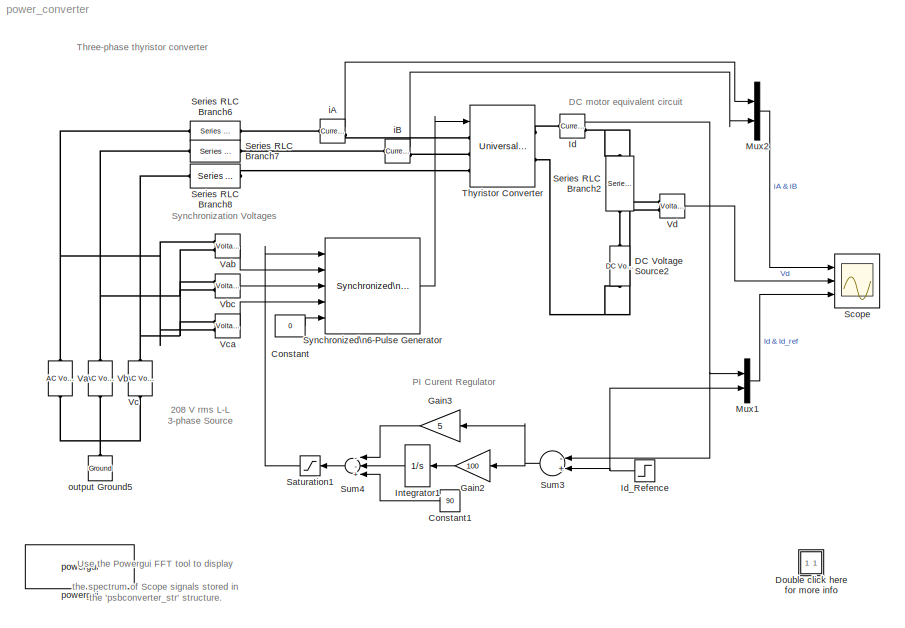
MODEL power_converter
KIND model
BLOCK [Constant] Constant
  Value = 0
BLOCK [Constant] Constant1
  Value = 90
BLOCK [Reference] DC Voltage Source2  REF=powerlib/Electrical\nSources/DC Voltage Source
  Amplitude = 120
  AttributesFormatString = \\n
  Description = source block
  Measurements = None
  Ports = [0, 0, 0, 0, 0, 1, 1]
  ShowPortLabels = on
  SourceBlock = powerlib/Electrical\nSources/DC Voltage Source
  SourceType = DC Voltage Source
BLOCK [SubSystem] Double click here for more info
  MaskDisplay = disp('?')
  MaskIconFrame = on
  MaskIconOpaque = on
  MaskIconRotate = none
  MaskIconUnits = autoscale
  MinAlgLoopOccurrences = off
  Ports = []
  RTWSystemCode = Auto
  TreatAsAtomicUnit = off
BLOCK [Gain] Gain2
  Gain = 100
BLOCK [Gain] Gain3
  Gain = 5
BLOCK [Reference] Id  REF=powerlib/Measurements/Current Measurement
  AttributesFormatString = \\n
  OutputType = Complex
  PSBequivalent = 0
  PhasorSimulation = off
  Ports = [0, 1, 0, 0, 0, 1, 1]
  ShowPortLabels = on
  SourceBlock = powerlib/Measurements/Current Measurement
  SourceType = Current Measurement
  Tag = PoWeRsYsTeMmEaSuReMeNt
BLOCK [Step] Id_Refence
  After = 25
  Before = 10
  SampleTime = 0
  Time = 0.04
BLOCK [Integrator] Integrator1
  InitialCondition = 20
  LimitOutput = on
  LowerSaturationLimit = 20
  Ports = [1, 1]
  UpperSaturationLimit = 160
BLOCK [Mux] Mux1
  Inputs = 2
  Ports = [2, 1]
BLOCK [Mux] Mux2
  Inputs = 2
  Ports = [2, 1]
BLOCK [Saturate] Saturation1
  LowerLimit = 20
  UpperLimit = 160
BLOCK [Scope] Scope
  DataFormat = StructureWithTime
  LimitDataPoints = off
  NumInputPorts = 3
  Ports = [3]
  SampleInput = on
  SampleTime = 1/60/512
  SaveName = psbconverter_str
  SaveToWorkspace = on
  TimeRange = 0.1
  YMax = 50~400~40
  YMin = -50~-200~-3.20216e-017
  ZoomMode = xonly
BLOCK [Reference] Series RLC Branch2  REF=powerlib/Elements/Series RLC Branch
  AttributesFormatString = \\n
  Capacitance = inf
  Inductance = 20e-3
  LConnTagsString = __new0
  LeftPortType = p1
  Measurements = None
  PhysicalDomain = powersysdomain
  Ports = [0, 0, 0, 0, 0, 1, 1]
  RConnTagsString = __new0
  Resistance = 1
  RightPortType = p1
  SourceBlock = powerlib/Elements/Series RLC Branch
  SourceType = Series RLC Branch
  SubClassName = unknown
BLOCK [Reference] Series RLC Branch6  REF=powerlib/Elements/Series RLC Branch
  AttributesFormatString = \\n
  Capacitance = inf
  Inductance = 1e-3
  LConnTagsString = __new0
  LeftPortType = p1
  Measurements = None
  PhysicalDomain = powersysdomain
  Ports = [0, 0, 0, 0, 0, 1, 1]
  RConnTagsString = __new0
  Resistance = 0.01
  RightPortType = p1
  SourceBlock = powerlib/Elements/Series RLC Branch
  SourceType = Series RLC Branch
  SubClassName = unknown
BLOCK [Reference] Series RLC Branch7  REF=powerlib/Elements/Series RLC Branch
  AttributesFormatString = \\n
  Capacitance = inf
  Inductance = 1e-3
  LConnTagsString = __new0
  LeftPortType = p1
  Measurements = None
  PhysicalDomain = powersysdomain
  Ports = [0, 0, 0, 0, 0, 1, 1]
  RConnTagsString = __new0
  Resistance = 0.01
  RightPortType = p1
  SourceBlock = powerlib/Elements/Series RLC Branch
  SourceType = Series RLC Branch
  SubClassName = unknown
BLOCK [Reference] Series RLC Branch8  REF=powerlib/Elements/Series RLC Branch
  AttributesFormatString = \\n
  Capacitance = inf
  Inductance = 1e-3
  LConnTagsString = __new0
  LeftPortType = p1
  Measurements = None
  PhysicalDomain = powersysdomain
  Ports = [0, 0, 0, 0, 0, 1, 1]
  RConnTagsString = __new0
  Resistance = 0.01
  RightPortType = p1
  SourceBlock = powerlib/Elements/Series RLC Branch
  SourceType = Series RLC Branch
  SubClassName = unknown
BLOCK [Sum] Sum3
  Inputs = -+
  Ports = [2, 1]
BLOCK [Sum] Sum4
  Inputs = --+
  Ports = [3, 1]
BLOCK [Reference] Synchronized\n6-Pulse Generator  REF=powerlib_extras/Control \nBlocks/Synchronized\n6-Pulse Generator
  Double_Pulse = on
  Ports = [5, 1]
  ShowPortLabels = on
  SourceBlock = powerlib_extras/Control \nBlocks/Synchronized\n6-Pulse Generator
  SourceType = Synchronized 6-pulse generator
  freq = 60
  pwidth = 10
BLOCK [Reference] Thyristor Converter  REF=powerlib/Power\nElectronics/Universal Bridge
  Arms = 3
  AttributesFormatString = \\n
  Device = Thyristors
  ForwardVoltage = .8
  ForwardVoltages = [  0.8  0.8  ]
  GTOparameters = [ 10e-6 , 20e-6 ]
  IGBTparameters = [ 1e-6 , 2e-6 ]
  Lon = 0
  Measurements = None
  Ports = [1, 0, 0, 0, 0, 3, 2]
  Ron = 1e-3
  ShowPortLabels = on
  SnubberCapacitance = .1e-6
  SnubberResistance = 500
  SourceBlock = powerlib/Power\nElectronics/Universal Bridge
  SourceType = Universal Bridge
BLOCK [Reference] Va  REF=powerlib/Electrical\nSources/AC Voltage Source
  Amplitude = 208*sqrt(2/3)
  AttributesFormatString = \\n
  Description = source block
  Frequency = 60
  Measurements = None
  Phase = 0
  Ports = [0, 0, 0, 0, 0, 1, 1]
  SampleTime = 0
  ShowPortLabels = on
  SourceBlock = powerlib/Electrical\nSources/AC Voltage Source
  SourceType = AC Voltage Source
BLOCK [Reference] Vab  REF=powerlib/Measurements/Voltage Measurement
  AttributesFormatString = \\n
  OutputType = Complex
  PSBequivalent = 0
  PhasorSimulation = off
  Ports = [0, 1, 0, 0, 0, 2]
  ShowPortLabels = on
  SourceBlock = powerlib/Measurements/Voltage Measurement
  SourceType = Voltage Measurement
  Tag = PoWeRsYsTeMmEaSuReMeNt
BLOCK [Reference] Vb  REF=powerlib/Electrical\nSources/AC Voltage Source
  Amplitude = 208*sqrt(2/3)
  AttributesFormatString = \\n
  Description = source block
  Frequency = 60
  Measurements = None
  Phase = -120
  Ports = [0, 0, 0, 0, 0, 1, 1]
  SampleTime = 0
  ShowPortLabels = on
  SourceBlock = powerlib/Electrical\nSources/AC Voltage Source
  SourceType = AC Voltage Source
BLOCK [Reference] Vbc  REF=powerlib/Measurements/Voltage Measurement
  AttributesFormatString = \\n
  OutputType = Complex
  PSBequivalent = 0
  PhasorSimulation = off
  Ports = [0, 1, 0, 0, 0, 2]
  ShowPortLabels = on
  SourceBlock = powerlib/Measurements/Voltage Measurement
  SourceType = Voltage Measurement
  Tag = PoWeRsYsTeMmEaSuReMeNt
BLOCK [Reference] Vc  REF=powerlib/Electrical\nSources/AC Voltage Source
  Amplitude = 208*sqrt(2/3)
  AttributesFormatString = \\n
  Description = source block
  Frequency = 60
  Measurements = None
  Phase = 120
  Ports = [0, 0, 0, 0, 0, 1, 1]
  SampleTime = 0
  ShowPortLabels = on
  SourceBlock = powerlib/Electrical\nSources/AC Voltage Source
  SourceType = AC Voltage Source
BLOCK [Reference] Vca  REF=powerlib/Measurements/Voltage Measurement
  AttributesFormatString = \\n
  OutputType = Complex
  PSBequivalent = 0
  PhasorSimulation = off
  Ports = [0, 1, 0, 0, 0, 2]
  ShowPortLabels = on
  SourceBlock = powerlib/Measurements/Voltage Measurement
  SourceType = Voltage Measurement
  Tag = PoWeRsYsTeMmEaSuReMeNt
BLOCK [Reference] Vd  REF=powerlib/Measurements/Voltage Measurement
  AttributesFormatString = \\n
  OutputType = Complex
  PSBequivalent = 0
  PhasorSimulation = off
  Ports = [0, 1, 0, 0, 0, 2]
  ShowPortLabels = on
  SourceBlock = powerlib/Measurements/Voltage Measurement
  SourceType = Voltage Measurement
  Tag = PoWeRsYsTeMmEaSuReMeNt
BLOCK [Reference] iA  REF=powerlib/Measurements/Current Measurement
  AttributesFormatString = \\n
  OutputType = Complex
  PSBequivalent = 0
  PhasorSimulation = off
  Ports = [0, 1, 0, 0, 0, 1, 1]
  ShowPortLabels = on
  SourceBlock = powerlib/Measurements/Current Measurement
  SourceType = Current Measurement
  Tag = PoWeRsYsTeMmEaSuReMeNt
BLOCK [Reference] iB  REF=powerlib/Measurements/Current Measurement
  AttributesFormatString = \\n
  OutputType = Complex
  PSBequivalent = 0
  PhasorSimulation = off
  Ports = [0, 1, 0, 0, 0, 1, 1]
  ShowPortLabels = on
  SourceBlock = powerlib/Measurements/Current Measurement
  SourceType = Current Measurement
  Tag = PoWeRsYsTeMmEaSuReMeNt
BLOCK [Reference] output Ground5  REF=powerlib/Elements/Ground
  AttributesFormatString = \\n
  LConnTagsString = a
  LeftPortType = p1
  PhysicalDomain = powersysdomain
  Ports = [0, 0, 0, 0, 0, 1]
  RightPortType = p1
  SourceBlock = powerlib/Elements/Ground
  SourceType = Ground
  SubClassName = unknown
BLOCK [Reference] powergui  REF=powerlib/powergui
  DisplayStyle = off
  Frange = [0:2:500]
  FreqAxis = on
  MaxFrequency = 2000
  Ports = []
  Priority = 2
  RmsSteady = 1
  ShowPortLabels = on
  SourceBlock = powerlib/powergui
  SourceType = PSB option menu block
  StartTime = 0.1-2/60
  Ts = 0
  Xlog = on
  Ylog = off
  ZoomFFT = on
  cycles = 2
  display = off
  echomessages = on
  frequency = 60
  frequencyindice = 1
  frequencyindicesteady = 1
  fundamental = 60
  methode = off
  save = off
  structure = psbconverter_str
  variable = ZData
ANNOTATION (root): 208 V rms L-L\n3-phase Source
ANNOTATION (root): DC motor equivalent circuit
ANNOTATION (root): PI Curent Regulator
ANNOTATION (root): Synchronization Voltages
ANNOTATION (root): Three-phase thyristor converter
ANNOTATION (root): Use the Powergui FFT tool to display\nthe spectrum of Scope signals stored in\nthe 'psbconverter_str' structure.
ANNOTATION Double click here for more info: A DC motor represented by a simplified RL-E model is fed from an inductive three-phase source through a six-pulse\nthyristor bridge. A pulse generator synchronized on the source voltages provides the trigger pulses for the six thyristors.\n\nThe converter output current is controlled by a PI current regulator built with Simulink blocks.\nA step signal is applied to the reference input to test the ...<+257ch>
ANNOTATION Double click here for more info: Circuit Description
ANNOTATION Double click here for more info: Demonstration
ANNOTATION Double click here for more info: H. Le-Huy (Universite Laval, Quebec)
ANNOTATION Double click here for more info: Start simulation and observe current and voltage waveforms on the Scope block.\n\nWhen simulation is completed, open the Powergui and select 'FFT Analysis' to display the 0 - 2000 Hz frequency spectrum of signals saved \nin the 'psbconverter_str' structure. The FFT will be performed on a 2-cycle window starting at t = 0.1 - 2/60 (last 2 cycles of recording). \nInput labeled 'Ia & Ib' and signal nu...<+653ch>
ANNOTATION Double click here for more info: This demonstration illustrates use of the Universal Bridge block to simulate a three-phase six-pulse\nconverter and harmonic analysis using the Powergui/FFT tool.
LINE Constant1:1 -> Sum4:3
LINE Constant:1 -> Synchronized\n6-Pulse Generator:5
LINE Gain2:1 -> Integrator1:1
LINE Gain3:1 -> Sum4:1
NET Id:1 -> Mux1:1, Sum3:1
NET Id_Refence:1 -> Mux1:2, Sum3:2
LINE Integrator1:1 -> Sum4:2
LINE Mux1:1 -> Scope:3
LINE Mux2:1 -> Scope:1
LINE Saturation1:1 -> Synchronized\n6-Pulse Generator:1
NET Sum3:1 -> Gain2:1, Gain3:1
LINE Sum4:1 -> Saturation1:1
LINE Synchronized\n6-Pulse Generator:1 -> Thyristor Converter:1
LINE Vab:1 -> Synchronized\n6-Pulse Generator:2
LINE Vbc:1 -> Synchronized\n6-Pulse Generator:3
LINE Vca:1 -> Synchronized\n6-Pulse Generator:4
LINE Vd:1 -> Scope:2
LINE iA:1 -> Mux2:1
LINE iB:1 -> Mux2:2
PNET net1: DC Voltage Source2:LConn1 -- Thyristor Converter:RConn2 -- Vd:LConn2
PLINE DC Voltage Source2:RConn1 -- Series RLC Branch2:RConn1
PLINE Id:LConn1 -- Thyristor Converter:RConn1
PNET net2: Id:RConn1 -- Series RLC Branch2:LConn1 -- Vd:LConn1
PNET net3: Series RLC Branch6:LConn1 -- Va:RConn1 -- Vab:LConn1 -- Vca:LConn2
PLINE Series RLC Branch6:RConn1 -- iA:LConn1
PNET net4: Series RLC Branch7:LConn1 -- Vab:LConn2 -- Vb:RConn1 -- Vbc:LConn1
PLINE Series RLC Branch7:RConn1 -- iB:LConn1
PNET net5: Series RLC Branch8:LConn1 -- Vbc:LConn2 -- Vc:RConn1 -- Vca:LConn1
PLINE Series RLC Branch8:RConn1 -- Thyristor Converter:LConn3
PLINE Thyristor Converter:LConn1 -- iA:RConn1
PLINE Thyristor Converter:LConn2 -- iB:RConn1
PNET net6: Va:LConn1 -- Vb:LConn1 -- Vc:LConn1 -- output Ground5:LConn1
note: NET lines group one-source signal fan-out (src -> all destinations, sorted); 1:1 wires keep LINE; PNET lines group multi-terminal physical nets as a canonical sorted terminal list (undirected conserving connections); 2-terminal nets keep the pairwise PLINE form
